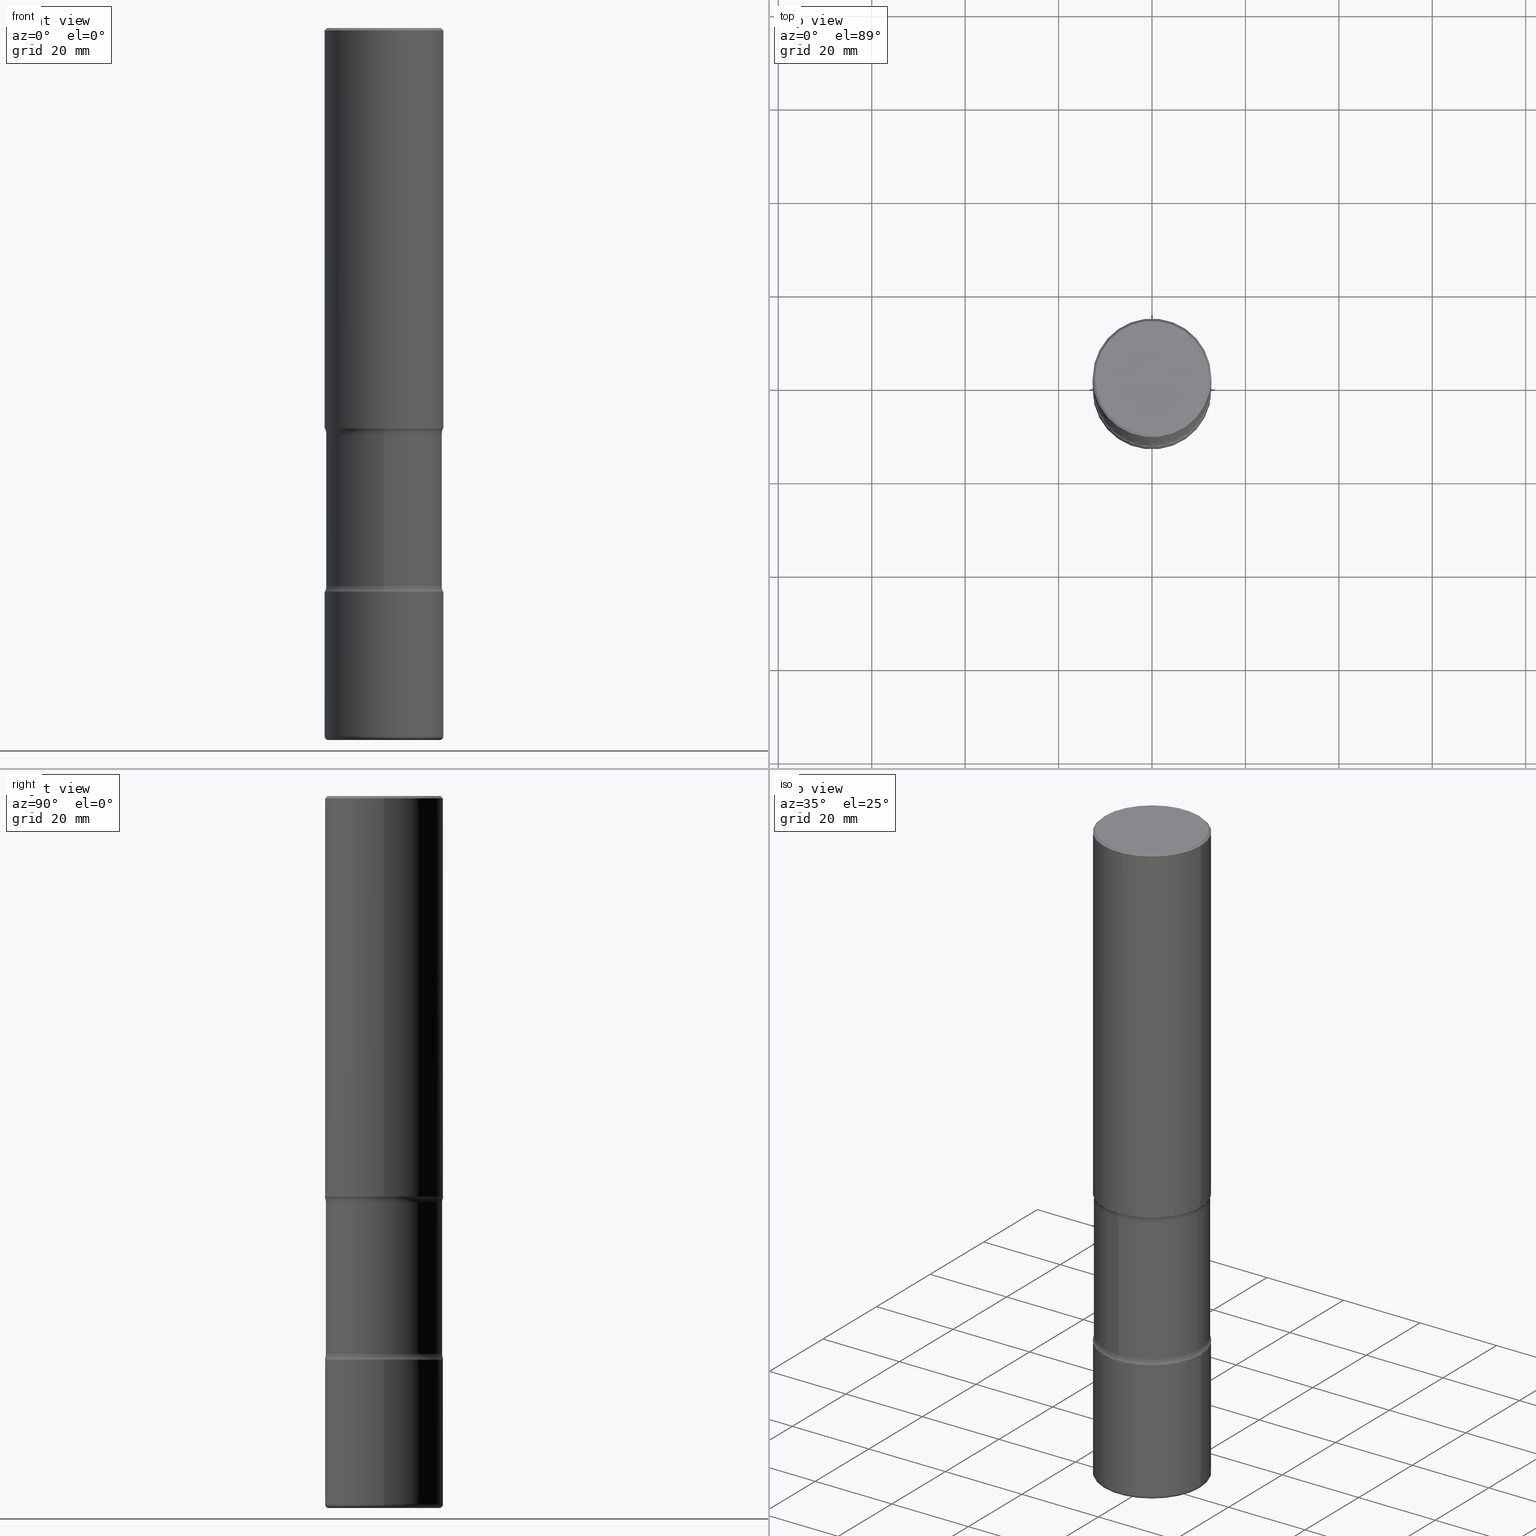
[diagram: canonical four-view strip — front | top / right | iso, engineering-drawing reading convention]
A machine part, canonical four-view strip (front | top / right | iso — engineering-drawing reading convention). The complete STEP part file that produces these views, byte-faithful:
ISO-10303-21;
HEADER;
FILE_DESCRIPTION (( 'STEP AP203' ),
    '1' );
FILE_NAME ('33523.STEP',
    '2024-03-01T22:44:56',
    ( '' ),
    ( '' ),
    'SwSTEP 2.0',
    'SolidWorks 2023',
    '' );
FILE_SCHEMA (( 'CONFIG_CONTROL_DESIGN' ));
ENDSEC;

DATA;
#1 = CARTESIAN_POINT ( 'NONE',  ( 1.467281283711081958E-28, -2.094888803305887271E-14, -6.000000000000000888 ) ) ;
#2 = VECTOR ( 'NONE', #434, 39.37007874015748143 ) ;
#3 = EDGE_LOOP ( 'NONE', ( #556, #431, #13, #83 ) ) ;
#4 = LINE ( 'NONE', #95, #504 ) ;
#5 = ORIENTED_EDGE ( 'NONE', *, *, #168, .T. ) ;
#6 = DIRECTION ( 'NONE',  ( 6.982962677686265922E-15, 1.000000000000000000, -3.278217592397109946E-15 ) ) ;
#7 = ORIENTED_EDGE ( 'NONE', *, *, #510, .T. ) ;
#8 = DIRECTION ( 'NONE',  ( 1.000000000000000000, -6.860497997771530774E-15, 4.843475318745101421E-29 ) ) ;
#9 = CARTESIAN_POINT ( 'NONE',  ( 4.890937612370273159E-31, -6.982962677686291609E-17, -0.02000000000000000042 ) ) ;
#10 = AXIS2_PLACEMENT_3D ( 'NONE', #40, #75, #217 ) ;
#11 = AXIS2_PLACEMENT_3D ( 'NONE', #1, #46, #432 ) ;
#12 = CARTESIAN_POINT ( 'NONE',  ( 0.5000000000000006661, -2.007601769834807990E-14, -4.750000000000000000 ) ) ;
#13 = ORIENTED_EDGE ( 'NONE', *, *, #500, .F. ) ;
#14 = PRODUCT ( '33523', '33523', '', ( #282 ) ) ;
#15 = APPLICATION_CONTEXT ( 'configuration controlled 3d designs of mechanical parts and assemblies' ) ;
#16 = DIRECTION ( 'NONE',  ( 2.598079946832093802E-29, -3.272933499350004525E-15, -1.000000000000000000 ) ) ;
#17 = DIRECTION ( 'NONE',  ( 6.860497997771532351E-15, 1.000000000000000000, 0.000000000000000000 ) ) ;
#18 = DIRECTION ( 'NONE',  ( 1.000000000000000000, 0.000000000000000000, 0.000000000000000000 ) ) ;
#19 = CARTESIAN_POINT ( 'NONE',  ( -0.5000000000000005551, 3.421651712066274396E-15, -0.02000000000000000042 ) ) ;
#20 = AXIS2_PLACEMENT_3D ( 'NONE', #22, #112, #243 ) ;
#21 = TOROIDAL_SURFACE ( 'NONE', #363, 0.4700000000000005840, 0.03000000000000029379 ) ;
#22 = CARTESIAN_POINT ( 'NONE',  ( -3.131554243005659264E-46, 4.471029511141341874E-32, 1.280553747030123384E-17 ) ) ;
#23 = CARTESIAN_POINT ( 'NONE',  ( -3.430248998885690051E-15, -0.5000000000000129896, -3.374999999999998668 ) ) ;
#24 = ADVANCED_FACE ( 'NONE', ( #90 ), #521, .F. ) ;
#25 = DIRECTION ( 'NONE',  ( 6.982962677686265922E-15, 1.000000000000000000, -3.272933499350004525E-15 ) ) ;
#26 = DIRECTION ( 'NONE',  ( 1.000000000000000000, -6.982962677686266711E-15, 4.876176775795935793E-29 ) ) ;
#27 = AXIS2_PLACEMENT_3D ( 'NONE', #77, #213, #169 ) ;
#28 = PERSON_AND_ORGANIZATION ( #349, #347 ) ;
#29 = DIRECTION ( 'NONE',  ( -1.000000000000000000, 6.982962677686266711E-15, 0.000000000000000000 ) ) ;
#30 = PRODUCT_RELATED_PRODUCT_CATEGORY ( 'detail', '', ( #14 ) ) ;
#31 = DATE_AND_TIME ( #204, #165 ) ;
#32 = DIRECTION ( 'NONE',  ( -6.982962677686265922E-15, -1.000000000000000000, 3.272933499350004525E-15 ) ) ;
#33 = ORIENTED_EDGE ( 'NONE', *, *, #302, .T. ) ;
#34 = EDGE_CURVE ( 'NONE', #141, #167, #98, .T. ) ;
#35 = DIRECTION ( 'NONE',  ( -2.445468806185136877E-29, 3.491481338843145188E-15, 1.000000000000000000 ) ) ;
#36 = ORIENTED_EDGE ( 'NONE', *, *, #500, .T. ) ;
#37 = VECTOR ( 'NONE', #58, 39.37007874015748143 ) ;
#38 = DIRECTION ( 'NONE',  ( -1.000000000000000000, 6.982962677686265922E-15, -4.876176775795935793E-29 ) ) ;
#39 = ORIENTED_EDGE ( 'NONE', *, *, #293, .T. ) ;
#40 = CARTESIAN_POINT ( 'NONE',  ( 8.182496310207079794E-29, -1.222798127249435385E-14, -3.423989794855665902 ) ) ;
#41 = ORIENTED_EDGE ( 'NONE', *, *, #150, .F. ) ;
#42 = CARTESIAN_POINT ( 'NONE',  ( 1.161597682937940108E-28, -1.658453635950494339E-14, -4.750000000000000000 ) ) ;
#43 = VERTEX_POINT ( 'NONE', #187 ) ;
#44 = EDGE_CURVE ( 'NONE', #134, #385, #126, .T. ) ;
#45 = CIRCLE ( 'NONE', #287, 0.5000000000000008882 ) ;
#46 = DIRECTION ( 'NONE',  ( -2.445468806185136597E-29, 3.491481338843145583E-15, 1.000000000000000000 ) ) ;
#47 = ORIENTED_EDGE ( 'NONE', *, *, #304, .T. ) ;
#48 = DIRECTION ( 'NONE',  ( -2.445468806185136877E-29, 3.491481338843145188E-15, 1.000000000000000000 ) ) ;
#49 = CARTESIAN_POINT ( 'NONE',  ( 1.467281283711081958E-28, -2.094888803305887271E-14, -6.000000000000000888 ) ) ;
#50 = APPROVAL ( #497, 'UNSPECIFIED' ) ;
#51 = DIRECTION ( 'NONE',  ( 6.982962677686265922E-15, 1.000000000000000000, -3.345119992241955130E-15 ) ) ;
#52 = VERTEX_POINT ( 'NONE', #442 ) ;
#53 = CARTESIAN_POINT ( 'NONE',  ( 3.421651712066419546E-15, 0.4899999999999793965, -6.000000000000001776 ) ) ;
#54 = AXIS2_PLACEMENT_3D ( 'NONE', #9, #305, #224 ) ;
#55 = ORIENTED_EDGE ( 'NONE', *, *, #67, .T. ) ;
#56 = AXIS2_PLACEMENT_3D ( 'NONE', #64, #405, #26 ) ;
#57 = CARTESIAN_POINT ( 'NONE',  ( 0.000000000000000000, 0.000000000000000000, 0.000000000000000000 ) ) ;
#58 = DIRECTION ( 'NONE',  ( 0.7071067811865459074, -7.319954787623249734E-15, -0.7071067811865491270 ) ) ;
#59 = DIRECTION ( 'NONE',  ( -2.445468806185136597E-29, 3.491481338843145583E-15, 1.000000000000000000 ) ) ;
#60 = EDGE_CURVE ( 'NONE', #252, #433, #70, .T. ) ;
#61 = ADVANCED_FACE ( 'NONE', ( #280 ), #238, .F. ) ;
#62 = DIRECTION ( 'NONE',  ( 6.982962677686265922E-15, 1.000000000000000000, -3.278217592397109946E-15 ) ) ;
#63 = DIRECTION ( 'NONE',  ( 1.000000000000000000, -6.982962677686266711E-15, 4.876176775795935793E-29 ) ) ;
#64 = CARTESIAN_POINT ( 'NONE',  ( 0.000000000000000000, 0.000000000000000000, 0.000000000000000000 ) ) ;
#65 = AXIS2_PLACEMENT_3D ( 'NONE', #499, #198, #114 ) ;
#66 = DIRECTION ( 'NONE',  ( 2.598079946832093802E-29, -3.272933499350004525E-15, -1.000000000000000000 ) ) ;
#67 = EDGE_CURVE ( 'NONE', #178, #509, #480, .T. ) ;
#68 = CARTESIAN_POINT ( 'NONE',  ( 0.4700000000000002509, -2.423088049157142248E-14, -6.000000000000000888 ) ) ;
#69 = DIRECTION ( 'NONE',  ( 1.000000000000000000, -6.982962677686266711E-15, 4.876176775795935793E-29 ) ) ;
#70 = CIRCLE ( 'NONE', #20, 0.4800000000000005929 ) ;
#71 = AXIS2_PLACEMENT_3D ( 'NONE', #290, #173, #116 ) ;
#72 = PERSON_AND_ORGANIZATION_ROLE ( 'creator' ) ;
#73 = FACE_OUTER_BOUND ( 'NONE', #76, .T. ) ;
#74 = VERTEX_POINT ( 'NONE', #153 ) ;
#75 = DIRECTION ( 'NONE',  ( 2.598079946832093802E-29, -3.272933499350004525E-15, -1.000000000000000000 ) ) ;
#76 = EDGE_LOOP ( 'NONE', ( #307, #343 ) ) ;
#77 = CARTESIAN_POINT ( 'NONE',  ( 1.467281283711081958E-28, -2.094888803305887271E-14, -6.000000000000000888 ) ) ;
#78 = VECTOR ( 'NONE', #35, 39.37007874015748143 ) ;
#79 = CIRCLE ( 'NONE', #120, 0.03000000000000029379 ) ;
#80 = DIRECTION ( 'NONE',  ( 1.000000000000000000, -6.982962677686269077E-15, 0.000000000000000000 ) ) ;
#81 = EDGE_LOOP ( 'NONE', ( #425, #130, #220, #380 ) ) ;
#82 = DIRECTION ( 'NONE',  ( 2.598079946832093802E-29, -3.272933499350004525E-15, -1.000000000000000000 ) ) ;
#83 = ORIENTED_EDGE ( 'NONE', *, *, #387, .F. ) ;
#84 = DESIGN_CONTEXT ( 'detailed design', #15, 'design' ) ;
#85 = FACE_OUTER_BOUND ( 'NONE', #351, .T. ) ;
#86 = ORIENTED_EDGE ( 'NONE', *, *, #422, .F. ) ;
#87 = CIRCLE ( 'NONE', #436, 0.5000000000000006661 ) ;
#88 = DIRECTION ( 'NONE',  ( -2.445468806185136597E-29, 3.491481338843145583E-15, 1.000000000000000000 ) ) ;
#89 = APPROVAL_PERSON_ORGANIZATION ( #451, #50, #192 ) ;
#90 = FACE_OUTER_BOUND ( 'NONE', #316, .T. ) ;
#91 = ADVANCED_FACE ( 'NONE', ( #452 ), #324, .T. ) ;
#92 = DIRECTION ( 'NONE',  ( 6.982962677686265922E-15, 1.000000000000000000, -3.345119992241955130E-15 ) ) ;
#93 = ORIENTED_EDGE ( 'NONE', *, *, #330, .T. ) ;
#94 = ADVANCED_BREP_SHAPE_REPRESENTATION ( '33523', ( #519, #512, #335, #535 ), #428 ) ;
#95 = CARTESIAN_POINT ( 'NONE',  ( 0.5000000000000006661, -3.491481338843138088E-15, 2.438088387897971260E-29 ) ) ;
#96 = ORIENTED_EDGE ( 'NONE', *, *, #329, .F. ) ;
#97 = CARTESIAN_POINT ( 'NONE',  ( -3.395946508896794322E-15, -0.4900000000000163669, -4.701010205144333653 ) ) ;
#98 = CIRCLE ( 'NONE', #54, 0.5000000000000005551 ) ;
#99 = ORIENTED_EDGE ( 'NONE', *, *, #119, .T. ) ;
#100 = AXIS2_PLACEMENT_3D ( 'NONE', #295, #472, #80 ) ;
#101 = ADVANCED_FACE ( 'NONE', ( #149 ), #542, .T. ) ;
#102 = DATE_TIME_ROLE ( 'creation_date' ) ;
#103 = DIRECTION ( 'NONE',  ( -6.982962677686265133E-15, -1.000000000000000000, 0.000000000000000000 ) ) ;
#104 = CARTESIAN_POINT ( 'NONE',  ( 1.459944877292526494E-28, -2.084414359289357934E-14, -5.969999999999999751 ) ) ;
#105 = CARTESIAN_POINT ( 'NONE',  ( 4.294522046777168570E-15, 0.6149999999999836708, -4.701010205144338094 ) ) ;
#106 =( NAMED_UNIT ( * ) SI_UNIT ( $, .STERADIAN. ) SOLID_ANGLE_UNIT ( ) );
#107 = CARTESIAN_POINT ( 'NONE',  ( 1.149617381423846373E-28, -1.641348940497263768E-14, -4.701010205144335430 ) ) ;
#108 = EDGE_CURVE ( 'NONE', #466, #524, #543, .T. ) ;
#109 = AXIS2_PLACEMENT_3D ( 'NONE', #201, #546, #241 ) ;
#110 = ADVANCED_FACE ( 'NONE', ( #498 ), #240, .F. ) ;
#111 = DIRECTION ( 'NONE',  ( 0.000000000000000000, 0.000000000000000000, 1.000000000000000000 ) ) ;
#112 = DIRECTION ( 'NONE',  ( -2.445468806185136597E-29, 3.491481338843145583E-15, 1.000000000000000000 ) ) ;
#113 = APPROVAL_DATE_TIME ( #321, #50 ) ;
#114 = DIRECTION ( 'NONE',  ( 1.000000000000000000, -6.982962677686267499E-15, 0.000000000000000000 ) ) ;
#115 = APPROVAL_ROLE ( '' ) ;
#116 = DIRECTION ( 'NONE',  ( -1.000000000000000000, 7.105427357600986081E-15, 0.000000000000000000 ) ) ;
#117 = EDGE_LOOP ( 'NONE', ( #490, #33, #355, #388 ) ) ;
#118 = VECTOR ( 'NONE', #443, 39.37007874015748143 ) ;
#119 = EDGE_CURVE ( 'NONE', #162, #74, #45, .T. ) ;
#120 = AXIS2_PLACEMENT_3D ( 'NONE', #137, #225, #392 ) ;
#121 = DIRECTION ( 'NONE',  ( -2.445468806185136597E-29, 3.491481338843145583E-15, 1.000000000000000000 ) ) ;
#122 = DIRECTION ( 'NONE',  ( 2.445468806185136597E-29, -3.491481338843145583E-15, -1.000000000000000000 ) ) ;
#123 = EDGE_LOOP ( 'NONE', ( #339, #532 ) ) ;
#124 = DIRECTION ( 'NONE',  ( 1.000000000000000000, -6.982962677686266711E-15, 4.876036955247123238E-29 ) ) ;
#125 = EDGE_LOOP ( 'NONE', ( #296, #301 ) ) ;
#126 = CIRCLE ( 'NONE', #445, 0.4700000000000002509 ) ;
#127 = CIRCLE ( 'NONE', #65, 0.5000000000000007772 ) ;
#128 = AXIS2_PLACEMENT_3D ( 'NONE', #525, #310, #270 ) ;
#129 = PLANE ( 'NONE',  #202 ) ;
#130 = ORIENTED_EDGE ( 'NONE', *, *, #255, .T. ) ;
#131 = CARTESIAN_POINT ( 'NONE',  ( 3.421651712066385231E-15, 0.4899999999999835598, -4.701010205144337206 ) ) ;
#132 = DIRECTION ( 'NONE',  ( 2.438088387897960049E-29, -3.491481338843145188E-15, -1.000000000000000000 ) ) ;
#133 = CARTESIAN_POINT ( 'NONE',  ( -0.4700000000000002509, -1.745038354453973469E-14, -6.000000000000000888 ) ) ;
#134 = VERTEX_POINT ( 'NONE', #68 ) ;
#135 = EDGE_CURVE ( 'NONE', #254, #481, #372, .T. ) ;
#136 = VECTOR ( 'NONE', #306, 39.37007874015748143 ) ;
#137 = CARTESIAN_POINT ( 'NONE',  ( 0.4700000000000005840, -2.412613605140612911E-14, -5.969999999999999751 ) ) ;
#138 = EDGE_LOOP ( 'NONE', ( #449, #400, #341, #478 ) ) ;
#139 = FACE_OUTER_BOUND ( 'NONE', #358, .T. ) ;
#140 = ORIENTED_EDGE ( 'NONE', *, *, #403, .T. ) ;
#141 = VERTEX_POINT ( 'NONE', #494 ) ;
#142 = EDGE_CURVE ( 'NONE', #254, #74, #229, .T. ) ;
#143 = APPLICATION_PROTOCOL_DEFINITION ( 'international standard', 'config_control_design', 1994, #171 ) ;
#144 = DIRECTION ( 'NONE',  ( 2.598079946832093802E-29, -3.272933499350004525E-15, -1.000000000000000000 ) ) ;
#145 = VECTOR ( 'NONE', #144, 39.37007874015748143 ) ;
#146 = CC_DESIGN_APPROVAL ( #151, ( #256 ) ) ;
#147 = APPROVAL_STATUS ( 'not_yet_approved' ) ;
#148 = FACE_OUTER_BOUND ( 'NONE', #208, .T. ) ;
#149 = FACE_OUTER_BOUND ( 'NONE', #117, .T. ) ;
#150 = EDGE_CURVE ( 'NONE', #481, #524, #414, .T. ) ;
#151 = APPROVAL ( #147, 'UNSPECIFIED' ) ;
#152 = PERSON_AND_ORGANIZATION_ROLE ( 'creator' ) ;
#153 = CARTESIAN_POINT ( 'NONE',  ( 3.491481338843219736E-15, 0.4999999999999887867, -3.375000000000002220 ) ) ;
#154 = AXIS2_PLACEMENT_3D ( 'NONE', #342, #513, #124 ) ;
#155 = CC_DESIGN_APPROVAL ( #50, ( #203 ) ) ;
#156 = CARTESIAN_POINT ( 'NONE',  ( 8.182496310207079794E-29, -1.222798127249435385E-14, -3.423989794855665902 ) ) ;
#157 = APPROVAL_DATE_TIME ( #31, #308 ) ;
#158 = PLANE ( 'NONE',  #211 ) ;
#159 = EDGE_LOOP ( 'NONE', ( #93, #551, #218, #507 ) ) ;
#160 = EDGE_CURVE ( 'NONE', #444, #382, #127, .T. ) ;
#161 = DIRECTION ( 'NONE',  ( -2.445468806185136597E-29, 3.491481338843145583E-15, 1.000000000000000000 ) ) ;
#162 = VERTEX_POINT ( 'NONE', #23 ) ;
#163 = AXIS2_PLACEMENT_3D ( 'NONE', #156, #237, #281 ) ;
#164 = CIRCLE ( 'NONE', #534, 0.5000000000000008882 ) ;
#165 = LOCAL_TIME ( 17, 44, 56.00000000000000000, #459 ) ;
#166 = CARTESIAN_POINT ( 'NONE',  ( 0.5000000000000006661, -3.491481338843138088E-15, 2.438088387897971260E-29 ) ) ;
#167 = VERTEX_POINT ( 'NONE', #19 ) ;
#168 = EDGE_CURVE ( 'NONE', #466, #178, #446, .T. ) ;
#169 = DIRECTION ( 'NONE',  ( -1.000000000000000000, 6.982962677686265922E-15, -4.876176775795935793E-29 ) ) ;
#170 = ORIENTED_EDGE ( 'NONE', *, *, #491, .F. ) ;
#171 = APPLICATION_CONTEXT ( 'configuration controlled 3d designs of mechanical parts and assemblies' ) ;
#172 = EDGE_CURVE ( 'NONE', #252, #141, #191, .T. ) ;
#173 = DIRECTION ( 'NONE',  ( 7.105427357601001859E-15, 1.000000000000000000, -3.491481338843145583E-15 ) ) ;
#174 = DIMENSIONAL_EXPONENTS ( 1.000000000000000000, 0.000000000000000000, 0.000000000000000000, 0.000000000000000000, 0.000000000000000000, 0.000000000000000000, 0.000000000000000000 ) ;
#175 = ORIENTED_EDGE ( 'NONE', *, *, #108, .F. ) ;
#176 = AXIS2_PLACEMENT_3D ( 'NONE', #361, #327, #17 ) ;
#177 = DIRECTION ( 'NONE',  ( 2.598079946832093802E-29, -3.272933499350004525E-15, -1.000000000000000000 ) ) ;
#178 = VERTEX_POINT ( 'NONE', #492 ) ;
#179 = CARTESIAN_POINT ( 'NONE',  ( 1.459944877292526494E-28, -2.084414359289357934E-14, -5.969999999999999751 ) ) ;
#180 = ORIENTED_EDGE ( 'NONE', *, *, #413, .F. ) ;
#181 = UNCERTAINTY_MEASURE_WITH_UNIT (LENGTH_MEASURE( 1.000000000000000082E-05 ), #323, 'distance_accuracy_value', 'NONE');
#182 = FACE_OUTER_BOUND ( 'NONE', #360, .T. ) ;
#183 = CARTESIAN_POINT ( 'NONE',  ( 3.351822085289412281E-15, 0.4800000000000005929, -1.669508273909561417E-15 ) ) ;
#184 = CONICAL_SURFACE ( 'NONE', #309, 0.5000000000000005551, 0.7853981633974460586 ) ;
#185 = DIRECTION ( 'NONE',  ( 2.598079946832093802E-29, -3.272933499350004525E-15, -1.000000000000000000 ) ) ;
#186 = APPROVAL_PERSON_ORGANIZATION ( #28, #308, #115 ) ;
#187 = CARTESIAN_POINT ( 'NONE',  ( -0.5000000000000007772, -1.729142991409307210E-14, -5.969999999999999751 ) ) ;
#188 = DIRECTION ( 'NONE',  ( 2.598079946832093802E-29, -3.272933499350004525E-15, -1.000000000000000000 ) ) ;
#189 = ORIENTED_EDGE ( 'NONE', *, *, #234, .T. ) ;
#190 = DIRECTION ( 'NONE',  ( 1.000000000000000000, -6.982962677686265922E-15, 4.883557194083112901E-29 ) ) ;
#191 = LINE ( 'NONE', #533, #37 ) ;
#192 = APPROVAL_ROLE ( '' ) ;
#193 = CC_DESIGN_DATE_AND_TIME_ASSIGNMENT ( #548, #545, ( #409 ) ) ;
#194 = AXIS2_PLACEMENT_3D ( 'NONE', #378, #376, #251 ) ;
#195 = DIRECTION ( 'NONE',  ( 2.598079946832093802E-29, -3.272933499350004525E-15, -1.000000000000000000 ) ) ;
#196 = AXIS2_PLACEMENT_3D ( 'NONE', #104, #59, #278 ) ;
#197 =( LENGTH_UNIT ( ) NAMED_UNIT ( * ) SI_UNIT ( $, .METRE. ) );
#198 = DIRECTION ( 'NONE',  ( -2.445468806185136597E-29, 3.491481338843145583E-15, 1.000000000000000000 ) ) ;
#199 = COORDINATED_UNIVERSAL_TIME_OFFSET ( 5, 0, .BEHIND. ) ;
#200 = CARTESIAN_POINT ( 'NONE',  ( 1.486357676291951651E-28, -2.067570323369244855E-14, -6.000000000000000888 ) ) ;
#201 = CARTESIAN_POINT ( 'NONE',  ( 4.294522046777136226E-15, 0.6149999999999878897, -3.423989794855668123 ) ) ;
#202 = AXIS2_PLACEMENT_3D ( 'NONE', #292, #467, #32 ) ;
#203 = PRODUCT_DEFINITION_FORMATION_WITH_SPECIFIED_SOURCE ( 'ANY', '', #14, .NOT_KNOWN. ) ;
#204 = CALENDAR_DATE ( 2024, 1, 3 ) ;
#205 = PLANE ( 'NONE',  #527 ) ;
#206 = PERSON_AND_ORGANIZATION ( #349, #347 ) ;
#207 = CARTESIAN_POINT ( 'NONE',  ( 0.000000000000000000, 0.000000000000000000, 0.000000000000000000 ) ) ;
#208 = EDGE_LOOP ( 'NONE', ( #291, #96, #262, #39 ) ) ;
#209 = DIRECTION ( 'NONE',  ( 6.982962677686266711E-15, 1.000000000000000000, -3.345119992241953553E-15 ) ) ;
#210 = ORIENTED_EDGE ( 'NONE', *, *, #60, .T. ) ;
#211 = AXIS2_PLACEMENT_3D ( 'NONE', #344, #337, #38 ) ;
#212 = AXIS2_PLACEMENT_3D ( 'NONE', #183, #132, #395 ) ;
#213 = DIRECTION ( 'NONE',  ( 2.438088387897960049E-29, -3.491481338843145188E-15, -1.000000000000000000 ) ) ;
#214 = ADVANCED_FACE ( 'NONE', ( #235 ), #366, .T. ) ;
#215 = ADVANCED_FACE ( 'NONE', ( #148 ), #184, .T. ) ;
#216 = ORIENTED_EDGE ( 'NONE', *, *, #332, .T. ) ;
#217 = DIRECTION ( 'NONE',  ( 6.982962677686265922E-15, 1.000000000000000000, -3.272933499350004525E-15 ) ) ;
#218 = ORIENTED_EDGE ( 'NONE', *, *, #440, .F. ) ;
#219 = CARTESIAN_POINT ( 'NONE',  ( 1.161597682937940108E-28, -1.658453635950494339E-14, -4.750000000000000000 ) ) ;
#220 = ORIENTED_EDGE ( 'NONE', *, *, #330, .F. ) ;
#221 = CIRCLE ( 'NONE', #417, 0.4899999999999999911 ) ;
#222 = AXIS2_PLACEMENT_3D ( 'NONE', #207, #161, #69 ) ;
#223 = CARTESIAN_POINT ( 'NONE',  ( 1.486357676291951651E-28, -2.067570323369244855E-14, -6.000000000000000888 ) ) ;
#224 = DIRECTION ( 'NONE',  ( 1.000000000000000000, -6.982962677686266711E-15, 0.000000000000000000 ) ) ;
#225 = DIRECTION ( 'NONE',  ( -6.982962677686266711E-15, -1.000000000000000000, 3.491481338843145583E-15 ) ) ;
#226 = ORIENTED_EDGE ( 'NONE', *, *, #491, .T. ) ;
#227 = CARTESIAN_POINT ( 'NONE',  ( -3.430248998885653369E-15, -0.5000000000000172085, -4.749999999999999112 ) ) ;
#228 = VERTEX_POINT ( 'NONE', #460 ) ;
#229 = CIRCLE ( 'NONE', #109, 0.1249999999999999584 ) ;
#230 = DIRECTION ( 'NONE',  ( 1.000000000000000000, -6.982962677686265133E-15, 0.000000000000000000 ) ) ;
#231 = CIRCLE ( 'NONE', #128, 0.5000000000000007772 ) ;
#232 = EDGE_LOOP ( 'NONE', ( #86, #429, #47, #258 ) ) ;
#233 = ADVANCED_FACE ( 'NONE', ( #550 ), #205, .F. ) ;
#234 = EDGE_CURVE ( 'NONE', #481, #254, #356, .T. ) ;
#235 = FACE_OUTER_BOUND ( 'NONE', #3, .T. ) ;
#236 = DIRECTION ( 'NONE',  ( -2.445468806185136597E-29, 3.491481338843145583E-15, 1.000000000000000000 ) ) ;
#237 = DIRECTION ( 'NONE',  ( 2.598079946832093802E-29, -3.272933499350004525E-15, -1.000000000000000000 ) ) ;
#238 = TOROIDAL_SURFACE ( 'NONE', #163, 0.6150000000000001021, 0.1249999999999999584 ) ;
#239 =( NAMED_UNIT ( * ) PLANE_ANGLE_UNIT ( ) SI_UNIT ( $, .RADIAN. ) );
#240 = TOROIDAL_SURFACE ( 'NONE', #389, 0.6150000000000001021, 0.1250000000000000278 ) ;
#241 = DIRECTION ( 'NONE',  ( -6.982962677686265133E-15, -1.000000000000000000, 0.000000000000000000 ) ) ;
#242 = ADVANCED_FACE ( 'NONE', ( #430 ), #158, .F. ) ;
#243 = DIRECTION ( 'NONE',  ( 1.000000000000000000, -6.982962677686266711E-15, 4.876036955247123238E-29 ) ) ;
#244 = DATE_AND_TIME ( #315, #379 ) ;
#245 = DIRECTION ( 'NONE',  ( 6.982962677686266711E-15, 1.000000000000000000, -3.345119992241953553E-15 ) ) ;
#246 = SECURITY_CLASSIFICATION_LEVEL ( 'unclassified' ) ;
#247 = ADVANCED_FACE ( 'NONE', ( #426 ), #461, .T. ) ;
#248 = DIRECTION ( 'NONE',  ( 1.000000000000000000, -6.982962677686266711E-15, 0.000000000000000000 ) ) ;
#249 = AXIS2_PLACEMENT_3D ( 'NONE', #559, #549, #209 ) ;
#250 = CALENDAR_DATE ( 2024, 1, 3 ) ;
#251 = DIRECTION ( 'NONE',  ( 6.982962677686265922E-15, 1.000000000000000000, -3.272933499350004525E-15 ) ) ;
#252 = VERTEX_POINT ( 'NONE', #334 ) ;
#253 = LINE ( 'NONE', #424, #78 ) ;
#254 = VERTEX_POINT ( 'NONE', #502 ) ;
#255 = EDGE_CURVE ( 'NONE', #385, #43, #267, .T. ) ;
#256 = PRODUCT_DEFINITION ( 'UNKNOWN', '', #203, #84 ) ;
#257 = CARTESIAN_POINT ( 'NONE',  ( 8.253457220874837135E-29, -1.178374951859561767E-14, -3.375000000000000444 ) ) ;
#258 = ORIENTED_EDGE ( 'NONE', *, *, #448, .F. ) ;
#259 = ADVANCED_FACE ( 'NONE', ( #515 ), #463, .F. ) ;
#260 = AXIS2_PLACEMENT_3D ( 'NONE', #223, #185, #394 ) ;
#261 = DIRECTION ( 'NONE',  ( -2.445468806185136877E-29, 3.491481338843145188E-15, 1.000000000000000000 ) ) ;
#262 = ORIENTED_EDGE ( 'NONE', *, *, #404, .T. ) ;
#263 = DIRECTION ( 'NONE',  ( 1.000000000000000000, -6.982962677686265133E-15, 0.000000000000000000 ) ) ;
#264 = ADVANCED_FACE ( 'NONE', ( #464 ), #129, .F. ) ;
#265 = CARTESIAN_POINT ( 'NONE',  ( -0.4800000000000005929, 3.386736898677843141E-15, 1.280553747027767124E-17 ) ) ;
#266 = EDGE_LOOP ( 'NONE', ( #518, #7, #99, #288 ) ) ;
#267 = CIRCLE ( 'NONE', #71, 0.03000000000000029379 ) ;
#268 = CARTESIAN_POINT ( 'NONE',  ( -0.5000000000000007772, -2.374075893885732456E-15, -3.375000000000000444 ) ) ;
#269 = ORIENTED_EDGE ( 'NONE', *, *, #538, .F. ) ;
#270 = DIRECTION ( 'NONE',  ( 1.000000000000000000, -6.982962677686267499E-15, 0.000000000000000000 ) ) ;
#271 = DIRECTION ( 'NONE',  ( 1.000000000000000000, -6.982962677686267499E-15, 0.000000000000000000 ) ) ;
#272 = ADVANCED_FACE ( 'NONE', ( #73 ), #418, .F. ) ;
#273 = CC_DESIGN_PERSON_AND_ORGANIZATION_ASSIGNMENT ( #462, #72, ( #203 ) ) ;
#274 = LINE ( 'NONE', #53, #2 ) ;
#275 = EDGE_LOOP ( 'NONE', ( #514, #279, #503, #140 ) ) ;
#276 = CLOSED_SHELL ( 'NONE', ( #286, #348, #320, #511, #91, #242 ) ) ;
#277 = VECTOR ( 'NONE', #261, 39.37007874015748143 ) ;
#278 = DIRECTION ( 'NONE',  ( 1.000000000000000000, -6.982962677686269077E-15, 0.000000000000000000 ) ) ;
#279 = ORIENTED_EDGE ( 'NONE', *, *, #135, .F. ) ;
#280 = FACE_OUTER_BOUND ( 'NONE', #275, .T. ) ;
#281 = DIRECTION ( 'NONE',  ( 6.982962677686265922E-15, 1.000000000000000000, -3.272933499350004525E-15 ) ) ;
#282 = MECHANICAL_CONTEXT ( 'NONE', #171, 'mechanical' ) ;
#283 = DIRECTION ( 'NONE',  ( 2.598079946832093802E-29, -3.272933499350004525E-15, -1.000000000000000000 ) ) ;
#284 = APPROVAL_DATE_TIME ( #368, #151 ) ;
#285 = DIRECTION ( 'NONE',  ( 6.982962677686265922E-15, 1.000000000000000000, -3.278217592397111523E-15 ) ) ;
#286 = ADVANCED_FACE ( 'NONE', ( #421 ), #384, .T. ) ;
#287 = AXIS2_PLACEMENT_3D ( 'NONE', #407, #331, #62 ) ;
#288 = ORIENTED_EDGE ( 'NONE', *, *, #142, .F. ) ;
#289 = PERSON_AND_ORGANIZATION ( #349, #347 ) ;
#290 = CARTESIAN_POINT ( 'NONE',  ( -0.4700000000000005840, -1.750459273482110076E-14, -5.969999999999999751 ) ) ;
#291 = ORIENTED_EDGE ( 'NONE', *, *, #172, .F. ) ;
#292 = CARTESIAN_POINT ( 'NONE',  ( 1.161597682937940108E-28, -1.658453635950494339E-14, -4.750000000000000000 ) ) ;
#293 = EDGE_CURVE ( 'NONE', #167, #141, #346, .T. ) ;
#294 = ORIENTED_EDGE ( 'NONE', *, *, #329, .T. ) ;
#295 = CARTESIAN_POINT ( 'NONE',  ( 1.459944877292526494E-28, -2.084414359289357934E-14, -5.969999999999999751 ) ) ;
#296 = ORIENTED_EDGE ( 'NONE', *, *, #440, .T. ) ;
#297 = CLOSED_SHELL ( 'NONE', ( #214, #522, #259, #61, #272, #264, #110, #488 ) ) ;
#298 = AXIS2_PLACEMENT_3D ( 'NONE', #458, #495, #416 ) ;
#299 = CIRCLE ( 'NONE', #11, 0.4700000000000002509 ) ;
#300 = CARTESIAN_POINT ( 'NONE',  ( 1.161597682937940108E-28, -1.658453635950494339E-14, -4.750000000000000000 ) ) ;
#301 = ORIENTED_EDGE ( 'NONE', *, *, #448, .T. ) ;
#302 = EDGE_CURVE ( 'NONE', #382, #167, #253, .T. ) ;
#303 = DIRECTION ( 'NONE',  ( 6.860497997771532351E-15, 1.000000000000000000, 0.000000000000000000 ) ) ;
#304 = EDGE_CURVE ( 'NONE', #228, #345, #554, .T. ) ;
#305 = DIRECTION ( 'NONE',  ( -2.445468806185136597E-29, 3.491481338843145583E-15, 1.000000000000000000 ) ) ;
#306 = DIRECTION ( 'NONE',  ( -2.445468806185136877E-29, 3.491481338843145188E-15, 1.000000000000000000 ) ) ;
#307 = ORIENTED_EDGE ( 'NONE', *, *, #403, .F. ) ;
#308 = APPROVAL ( #373, 'UNSPECIFIED' ) ;
#309 = AXIS2_PLACEMENT_3D ( 'NONE', #454, #411, #29 ) ;
#310 = DIRECTION ( 'NONE',  ( -2.445468806185136597E-29, 3.491481338843145583E-15, 1.000000000000000000 ) ) ;
#311 = ORIENTED_EDGE ( 'NONE', *, *, #470, .T. ) ;
#312 = CC_DESIGN_PERSON_AND_ORGANIZATION_ASSIGNMENT ( #456, #412, ( #14 ) ) ;
#313 = CARTESIAN_POINT ( 'NONE',  ( -3.395946508896831399E-15, -0.4900000000000125366, -3.423989794855664126 ) ) ;
#314 = EDGE_LOOP ( 'NONE', ( #375, #226, #216, #530 ) ) ;
#315 = CALENDAR_DATE ( 2024, 1, 3 ) ;
#316 = EDGE_LOOP ( 'NONE', ( #294, #210 ) ) ;
#317 = AXIS2_PLACEMENT_3D ( 'NONE', #367, #195, #285 ) ;
#318 = APPLICATION_PROTOCOL_DEFINITION ( 'international standard', 'config_control_design', 1994, #15 ) ;
#319 = CARTESIAN_POINT ( 'NONE',  ( -3.361644018907902538E-15, -0.4900000000000208078, -5.999999999999999112 ) ) ;
#320 = ADVANCED_FACE ( 'NONE', ( #508 ), #468, .T. ) ;
#321 = DATE_AND_TIME ( #536, #398 ) ;
#322 = CARTESIAN_POINT ( 'NONE',  ( 8.170896306099193759E-29, -1.224459313860807689E-14, -3.423989794855665902 ) ) ;
#323 =( CONVERSION_BASED_UNIT ( 'INCH', #406 ) LENGTH_UNIT ( ) NAMED_UNIT ( #174 ) );
#324 = CYLINDRICAL_SURFACE ( 'NONE', #298, 0.5000000000000006661 ) ;
#325 = COORDINATED_UNIVERSAL_TIME_OFFSET ( 5, 0, .BEHIND. ) ;
#326 = AXIS2_PLACEMENT_3D ( 'NONE', #506, #121, #248 ) ;
#327 = DIRECTION ( 'NONE',  ( 1.000000000000000000, -6.860497997771530774E-15, 4.843475318745101421E-29 ) ) ;
#328 = AXIS2_PLACEMENT_3D ( 'NONE', #486, #489, #190 ) ;
#329 = EDGE_CURVE ( 'NONE', #433, #252, #397, .T. ) ;
#330 = EDGE_CURVE ( 'NONE', #228, #43, #473, .T. ) ;
#331 = DIRECTION ( 'NONE',  ( 2.598079946832093802E-29, -3.272933499350004525E-15, -1.000000000000000000 ) ) ;
#332 = EDGE_CURVE ( 'NONE', #444, #141, #4, .T. ) ;
#333 = SHAPE_DEFINITION_REPRESENTATION ( #450, #94 ) ;
#334 = CARTESIAN_POINT ( 'NONE',  ( 0.4800000000000005929, -3.396558832296486043E-15, 1.280553747032483033E-17 ) ) ;
#335 = MANIFOLD_SOLID_BREP ( 'Body-Move/Copy2[4]', #297 ) ;
#336 = COORDINATED_UNIVERSAL_TIME_OFFSET ( 5, 0, .BEHIND. ) ;
#337 = DIRECTION ( 'NONE',  ( 2.438088387897960049E-29, -3.491481338843145188E-15, -1.000000000000000000 ) ) ;
#338 = LOCAL_TIME ( 17, 44, 56.00000000000000000, #199 ) ;
#339 = ORIENTED_EDGE ( 'NONE', *, *, #44, .F. ) ;
#340 = CARTESIAN_POINT ( 'NONE',  ( 4.890937612370273159E-31, -6.982962677686291609E-17, -0.02000000000000000042 ) ) ;
#341 = ORIENTED_EDGE ( 'NONE', *, *, #34, .T. ) ;
#342 = CARTESIAN_POINT ( 'NONE',  ( -3.131554243005659264E-46, 4.471029511141341874E-32, 1.280553747030123384E-17 ) ) ;
#343 = ORIENTED_EDGE ( 'NONE', *, *, #119, .F. ) ;
#344 = CARTESIAN_POINT ( 'NONE',  ( 1.161597682937940108E-28, -1.658453635950494339E-14, -4.750000000000000000 ) ) ;
#345 = VERTEX_POINT ( 'NONE', #12 ) ;
#346 = CIRCLE ( 'NONE', #326, 0.5000000000000005551 ) ;
#347 = ORGANIZATION ( 'UNSPECIFIED', 'UNSPECIFIED', '' ) ;
#348 = ADVANCED_FACE ( 'NONE', ( #484 ), #21, .T. ) ;
#349 = PERSON ( 'UNSPECIFIED', 'UNSPECIFIED', 'UNSPECIFIED', ('UNSPECIFIED'), ('UNSPECIFIED'), ('UNSPECIFIED') ) ;
#350 = DIRECTION ( 'NONE',  ( 1.000000000000000000, -6.982962677686265922E-15, 4.883557194083112901E-29 ) ) ;
#351 = EDGE_LOOP ( 'NONE', ( #560, #311, #487, #269 ) ) ;
#352 = DIRECTION ( 'NONE',  ( -2.445468806185136597E-29, 3.491481338843145583E-15, 1.000000000000000000 ) ) ;
#353 = EDGE_LOOP ( 'NONE', ( #175, #180, #55, #36 ) ) ;
#354 = CYLINDRICAL_SURFACE ( 'NONE', #260, 0.4900000000000001021 ) ;
#355 = ORIENTED_EDGE ( 'NONE', *, *, #34, .F. ) ;
#356 = CIRCLE ( 'NONE', #249, 0.4900000000000002132 ) ;
#357 = TOROIDAL_SURFACE ( 'NONE', #328, 0.4700000000000005840, 0.03000000000000029379 ) ;
#358 = EDGE_LOOP ( 'NONE', ( #393, #485, #558, #475 ) ) ;
#359 = DIRECTION ( 'NONE',  ( 6.982962677686265922E-15, 1.000000000000000000, -3.278217592397111523E-15 ) ) ;
#360 = EDGE_LOOP ( 'NONE', ( #41, #189, #423, #391 ) ) ;
#361 = CARTESIAN_POINT ( 'NONE',  ( -4.219206268629376327E-15, -0.6150000000000164224, -4.701010205144333653 ) ) ;
#362 = EDGE_CURVE ( 'NONE', #524, #509, #221, .T. ) ;
#363 = AXIS2_PLACEMENT_3D ( 'NONE', #179, #352, #350 ) ;
#364 = AXIS2_PLACEMENT_3D ( 'NONE', #402, #16, #25 ) ;
#365 = COORDINATED_UNIVERSAL_TIME_OFFSET ( 5, 0, .BEHIND. ) ;
#366 = CYLINDRICAL_SURFACE ( 'NONE', #496, 0.4900000000000001021 ) ;
#367 = CARTESIAN_POINT ( 'NONE',  ( 1.161597682937940108E-28, -1.658453635950494339E-14, -4.750000000000000000 ) ) ;
#368 = DATE_AND_TIME ( #415, #338 ) ;
#369 = DIRECTION ( 'NONE',  ( 6.982962677686266711E-15, 1.000000000000000000, -2.230079994827969693E-15 ) ) ;
#370 = CC_DESIGN_DATE_AND_TIME_ASSIGNMENT ( #244, #102, ( #256 ) ) ;
#371 = APPROVAL_ROLE ( '' ) ;
#372 = CIRCLE ( 'NONE', #427, 0.4900000000000002132 ) ;
#373 = APPROVAL_STATUS ( 'not_yet_approved' ) ;
#374 = DIRECTION ( 'NONE',  ( -2.438088387897960049E-29, 3.491481338843145188E-15, 1.000000000000000000 ) ) ;
#375 = ORIENTED_EDGE ( 'NONE', *, *, #302, .F. ) ;
#376 = DIRECTION ( 'NONE',  ( 2.598079946832093241E-29, -3.272933499350004525E-15, -1.000000000000000000 ) ) ;
#377 = ORIENTED_EDGE ( 'NONE', *, *, #413, .T. ) ;
#378 = CARTESIAN_POINT ( 'NONE',  ( 8.253457220874837135E-29, -1.178374951859561767E-14, -3.375000000000000444 ) ) ;
#379 = LOCAL_TIME ( 17, 44, 56.00000000000000000, #325 ) ;
#380 = ORIENTED_EDGE ( 'NONE', *, *, #471, .F. ) ;
#381 = DIRECTION ( 'NONE',  ( -1.000000000000000000, 6.982962677686266711E-15, 0.000000000000000000 ) ) ;
#382 = VERTEX_POINT ( 'NONE', #268 ) ;
#383 = CC_DESIGN_PERSON_AND_ORGANIZATION_ASSIGNMENT ( #289, #420, ( #203 ) ) ;
#384 = CYLINDRICAL_SURFACE ( 'NONE', #222, 0.5000000000000006661 ) ;
#385 = VERTEX_POINT ( 'NONE', #133 ) ;
#386 = CARTESIAN_POINT ( 'NONE',  ( 1.148869742576547963E-28, -1.642419601879555421E-14, -4.701010205144335430 ) ) ;
#387 = EDGE_CURVE ( 'NONE', #254, #509, #274, .T. ) ;
#388 = ORIENTED_EDGE ( 'NONE', *, *, #332, .F. ) ;
#389 = AXIS2_PLACEMENT_3D ( 'NONE', #107, #283, #457 ) ;
#390 = TOROIDAL_SURFACE ( 'NONE', #364, 0.6150000000000001021, 0.1250000000000000278 ) ;
#391 = ORIENTED_EDGE ( 'NONE', *, *, #362, .F. ) ;
#392 = DIRECTION ( 'NONE',  ( 1.000000000000000000, -6.982962677686329031E-15, 0.000000000000000000 ) ) ;
#393 = ORIENTED_EDGE ( 'NONE', *, *, #168, .F. ) ;
#394 = DIRECTION ( 'NONE',  ( 6.982962677686266711E-15, 1.000000000000000000, -2.230079994827969693E-15 ) ) ;
#395 = DIRECTION ( 'NONE',  ( -1.000000000000000000, 6.982962677686265922E-15, -4.876176775795935793E-29 ) ) ;
#396 = CLOSED_SHELL ( 'NONE', ( #101, #247, #215, #24, #233, #547 ) ) ;
#397 = CIRCLE ( 'NONE', #154, 0.4800000000000005929 ) ;
#398 = LOCAL_TIME ( 17, 44, 56.00000000000000000, #365 ) ;
#399 = CARTESIAN_POINT ( 'NONE',  ( -0.5000000000000006661, 3.552713678800505663E-15, -2.459467545127455974E-29 ) ) ;
#400 = ORIENTED_EDGE ( 'NONE', *, *, #172, .T. ) ;
#401 = CC_DESIGN_PERSON_AND_ORGANIZATION_ASSIGNMENT ( #206, #501, ( #409 ) ) ;
#402 = CARTESIAN_POINT ( 'NONE',  ( 1.149617381423846373E-28, -1.641348940497263768E-14, -4.701010205144335430 ) ) ;
#403 = EDGE_CURVE ( 'NONE', #74, #162, #164, .T. ) ;
#404 = EDGE_CURVE ( 'NONE', #433, #167, #438, .T. ) ;
#405 = DIRECTION ( 'NONE',  ( -2.445468806185136597E-29, 3.491481338843145583E-15, 1.000000000000000000 ) ) ;
#406 = LENGTH_MEASURE_WITH_UNIT ( LENGTH_MEASURE( 0.02539999999999999897 ), #197 );
#407 = CARTESIAN_POINT ( 'NONE',  ( 8.043616902485270068E-29, -1.208425279789868613E-14, -3.375000000000000444 ) ) ;
#408 = CIRCLE ( 'NONE', #482, 0.5000000000000006661 ) ;
#409 = SECURITY_CLASSIFICATION ( '', '', #246 ) ;
#410 = CYLINDRICAL_SURFACE ( 'NONE', #505, 0.5000000000000006661 ) ;
#411 = DIRECTION ( 'NONE',  ( 2.445468806185136597E-29, -3.491481338843145583E-15, -1.000000000000000000 ) ) ;
#412 = PERSON_AND_ORGANIZATION_ROLE ( 'design_owner' ) ;
#413 = EDGE_CURVE ( 'NONE', #178, #466, #87, .T. ) ;
#414 = LINE ( 'NONE', #319, #145 ) ;
#415 = CALENDAR_DATE ( 2024, 1, 3 ) ;
#416 = DIRECTION ( 'NONE',  ( 1.000000000000000000, -6.982962677686266711E-15, 4.876176775795935793E-29 ) ) ;
#417 = AXIS2_PLACEMENT_3D ( 'NONE', #386, #523, #92 ) ;
#418 = PLANE ( 'NONE',  #194 ) ;
#419 = CIRCLE ( 'NONE', #196, 0.5000000000000006661 ) ;
#420 = PERSON_AND_ORGANIZATION_ROLE ( 'design_supplier' ) ;
#421 = FACE_OUTER_BOUND ( 'NONE', #159, .T. ) ;
#422 = EDGE_CURVE ( 'NONE', #43, #52, #479, .T. ) ;
#423 = ORIENTED_EDGE ( 'NONE', *, *, #387, .T. ) ;
#424 = CARTESIAN_POINT ( 'NONE',  ( -0.5000000000000006661, 3.552713678800505663E-15, -2.459467545127455974E-29 ) ) ;
#425 = ORIENTED_EDGE ( 'NONE', *, *, #44, .T. ) ;
#426 = FACE_OUTER_BOUND ( 'NONE', #138, .T. ) ;
#427 = AXIS2_PLACEMENT_3D ( 'NONE', #322, #66, #245 ) ;
#428 =( GEOMETRIC_REPRESENTATION_CONTEXT ( 3 ) GLOBAL_UNCERTAINTY_ASSIGNED_CONTEXT ( ( #181 ) ) GLOBAL_UNIT_ASSIGNED_CONTEXT ( ( #323, #239, #106 ) ) REPRESENTATION_CONTEXT ( 'NONE', 'WORKASPACE' ) );
#429 = ORIENTED_EDGE ( 'NONE', *, *, #538, .T. ) ;
#430 = FACE_OUTER_BOUND ( 'NONE', #125, .T. ) ;
#431 = ORIENTED_EDGE ( 'NONE', *, *, #150, .T. ) ;
#432 = DIRECTION ( 'NONE',  ( 1.000000000000000000, -6.982962677686267499E-15, 0.000000000000000000 ) ) ;
#433 = VERTEX_POINT ( 'NONE', #265 ) ;
#434 = DIRECTION ( 'NONE',  ( 2.598079946832093802E-29, -3.272933499350004525E-15, -1.000000000000000000 ) ) ;
#435 = EDGE_LOOP ( 'NONE', ( #377, #5 ) ) ;
#436 = AXIS2_PLACEMENT_3D ( 'NONE', #300, #188, #359 ) ;
#437 = CIRCLE ( 'NONE', #465, 0.4899999999999999911 ) ;
#438 = LINE ( 'NONE', #477, #118 ) ;
#439 = EDGE_LOOP ( 'NONE', ( #469, #170 ) ) ;
#440 = EDGE_CURVE ( 'NONE', #345, #52, #408, .T. ) ;
#441 = CARTESIAN_POINT ( 'NONE',  ( 1.148869742576547963E-28, -1.642419601879555421E-14, -4.701010205144335430 ) ) ;
#442 = CARTESIAN_POINT ( 'NONE',  ( -0.5000000000000006661, -1.516162629739875255E-14, -4.750000000000000000 ) ) ;
#443 = DIRECTION ( 'NONE',  ( -0.7071067811865459074, 2.468850131082240100E-15, -0.7071067811865491270 ) ) ;
#444 = VERTEX_POINT ( 'NONE', #476 ) ;
#445 = AXIS2_PLACEMENT_3D ( 'NONE', #49, #526, #271 ) ;
#446 = CIRCLE ( 'NONE', #317, 0.5000000000000006661 ) ;
#447 = AXIS2_PLACEMENT_3D ( 'NONE', #520, #8, #303 ) ;
#448 = EDGE_CURVE ( 'NONE', #52, #345, #553, .T. ) ;
#449 = ORIENTED_EDGE ( 'NONE', *, *, #60, .F. ) ;
#450 = PRODUCT_DEFINITION_SHAPE ( 'NONE', 'NONE',  #256 ) ;
#451 = PERSON_AND_ORGANIZATION ( #349, #347 ) ;
#452 = FACE_OUTER_BOUND ( 'NONE', #232, .T. ) ;
#453 = FACE_OUTER_BOUND ( 'NONE', #314, .T. ) ;
#454 = CARTESIAN_POINT ( 'NONE',  ( 4.890937612370273159E-31, -6.982962677686291609E-17, -0.02000000000000000042 ) ) ;
#455 = AXIS2_PLACEMENT_3D ( 'NONE', #219, #88, #263 ) ;
#456 = PERSON_AND_ORGANIZATION ( #349, #347 ) ;
#457 = DIRECTION ( 'NONE',  ( 6.982962677686265922E-15, 1.000000000000000000, -3.272933499350004525E-15 ) ) ;
#458 = CARTESIAN_POINT ( 'NONE',  ( 0.000000000000000000, 0.000000000000000000, 0.000000000000000000 ) ) ;
#459 = COORDINATED_UNIVERSAL_TIME_OFFSET ( 5, 0, .BEHIND. ) ;
#460 = CARTESIAN_POINT ( 'NONE',  ( 0.5000000000000007772, -2.433562493173672216E-14, -5.969999999999999751 ) ) ;
#461 = CONICAL_SURFACE ( 'NONE', #516, 0.5000000000000005551, 0.7853981633974460586 ) ;
#462 = PERSON_AND_ORGANIZATION ( #349, #347 ) ;
#463 = TOROIDAL_SURFACE ( 'NONE', #10, 0.6150000000000001021, 0.1249999999999999584 ) ;
#464 = FACE_OUTER_BOUND ( 'NONE', #435, .T. ) ;
#465 = AXIS2_PLACEMENT_3D ( 'NONE', #441, #177, #51 ) ;
#466 = VERTEX_POINT ( 'NONE', #227 ) ;
#467 = DIRECTION ( 'NONE',  ( -2.598079946832093241E-29, 3.272933499350004525E-15, 1.000000000000000000 ) ) ;
#468 = PLANE ( 'NONE',  #27 ) ;
#469 = ORIENTED_EDGE ( 'NONE', *, *, #160, .F. ) ;
#470 = EDGE_CURVE ( 'NONE', #385, #134, #299, .T. ) ;
#471 = EDGE_CURVE ( 'NONE', #134, #228, #79, .T. ) ;
#472 = DIRECTION ( 'NONE',  ( -2.445468806185136597E-29, 3.491481338843145583E-15, 1.000000000000000000 ) ) ;
#473 = CIRCLE ( 'NONE', #100, 0.5000000000000006661 ) ;
#474 = CC_DESIGN_SECURITY_CLASSIFICATION ( #409, ( #203 ) ) ;
#475 = ORIENTED_EDGE ( 'NONE', *, *, #67, .F. ) ;
#476 = CARTESIAN_POINT ( 'NONE',  ( 0.5000000000000007772, -1.527523085743875734E-14, -3.375000000000000444 ) ) ;
#477 = CARTESIAN_POINT ( 'NONE',  ( -0.5000000000000005551, 3.421651712066274396E-15, -0.02000000000000000042 ) ) ;
#478 = ORIENTED_EDGE ( 'NONE', *, *, #404, .F. ) ;
#479 = LINE ( 'NONE', #399, #136 ) ;
#480 = CIRCLE ( 'NONE', #552, 0.1250000000000000278 ) ;
#481 = VERTEX_POINT ( 'NONE', #313 ) ;
#482 = AXIS2_PLACEMENT_3D ( 'NONE', #42, #531, #230 ) ;
#483 = CC_DESIGN_APPROVAL ( #308, ( #409 ) ) ;
#484 = FACE_OUTER_BOUND ( 'NONE', #81, .T. ) ;
#485 = ORIENTED_EDGE ( 'NONE', *, *, #108, .T. ) ;
#486 = CARTESIAN_POINT ( 'NONE',  ( 1.459944877292526494E-28, -2.084414359289357934E-14, -5.969999999999999751 ) ) ;
#487 = ORIENTED_EDGE ( 'NONE', *, *, #471, .T. ) ;
#488 = ADVANCED_FACE ( 'NONE', ( #182 ), #354, .T. ) ;
#489 = DIRECTION ( 'NONE',  ( -2.445468806185136597E-29, 3.491481338843145583E-15, 1.000000000000000000 ) ) ;
#490 = ORIENTED_EDGE ( 'NONE', *, *, #160, .T. ) ;
#491 = EDGE_CURVE ( 'NONE', #382, #444, #231, .T. ) ;
#492 = CARTESIAN_POINT ( 'NONE',  ( 3.491481338843253657E-15, 0.4999999999999840128, -4.750000000000001776 ) ) ;
#493 = PERSON_AND_ORGANIZATION ( #349, #347 ) ;
#494 = CARTESIAN_POINT ( 'NONE',  ( 0.5000000000000005551, -3.500078625662632235E-15, -0.02000000000000000042 ) ) ;
#495 = DIRECTION ( 'NONE',  ( -2.445468806185136597E-29, 3.491481338843145583E-15, 1.000000000000000000 ) ) ;
#496 = AXIS2_PLACEMENT_3D ( 'NONE', #200, #537, #369 ) ;
#497 = APPROVAL_STATUS ( 'not_yet_approved' ) ;
#498 = FACE_OUTER_BOUND ( 'NONE', #353, .T. ) ;
#499 = CARTESIAN_POINT ( 'NONE',  ( 8.253457220874837135E-29, -1.178374951859561767E-14, -3.375000000000000444 ) ) ;
#500 = EDGE_CURVE ( 'NONE', #509, #524, #437, .T. ) ;
#501 = PERSON_AND_ORGANIZATION_ROLE ( 'classification_officer' ) ;
#502 = CARTESIAN_POINT ( 'NONE',  ( 3.421651712066353676E-15, 0.4899999999999880007, -3.423989794855667679 ) ) ;
#503 = ORIENTED_EDGE ( 'NONE', *, *, #142, .T. ) ;
#504 = VECTOR ( 'NONE', #48, 39.37007874015748143 ) ;
#505 = AXIS2_PLACEMENT_3D ( 'NONE', #539, #236, #63 ) ;
#506 = CARTESIAN_POINT ( 'NONE',  ( 4.890937612370273159E-31, -6.982962677686291609E-17, -0.02000000000000000042 ) ) ;
#507 = ORIENTED_EDGE ( 'NONE', *, *, #304, .F. ) ;
#508 = FACE_OUTER_BOUND ( 'NONE', #123, .T. ) ;
#509 = VERTEX_POINT ( 'NONE', #131 ) ;
#510 = EDGE_CURVE ( 'NONE', #481, #162, #544, .T. ) ;
#511 = ADVANCED_FACE ( 'NONE', ( #85 ), #357, .T. ) ;
#512 = MANIFOLD_SOLID_BREP ( 'Body-Move/Copy2[2]', #396 ) ;
#513 = DIRECTION ( 'NONE',  ( -2.445468806185136597E-29, 3.491481338843145583E-15, 1.000000000000000000 ) ) ;
#514 = ORIENTED_EDGE ( 'NONE', *, *, #510, .F. ) ;
#515 = FACE_OUTER_BOUND ( 'NONE', #266, .T. ) ;
#516 = AXIS2_PLACEMENT_3D ( 'NONE', #340, #122, #381 ) ;
#517 = LOCAL_TIME ( 17, 44, 56.00000000000000000, #336 ) ;
#518 = ORIENTED_EDGE ( 'NONE', *, *, #234, .F. ) ;
#519 = MANIFOLD_SOLID_BREP ( 'Body-Move/Copy2[1]', #276 ) ;
#520 = CARTESIAN_POINT ( 'NONE',  ( -4.219206268629410248E-15, -0.6150000000000123146, -3.423989794855663682 ) ) ;
#521 = PLANE ( 'NONE',  #212 ) ;
#522 = ADVANCED_FACE ( 'NONE', ( #139 ), #390, .F. ) ;
#523 = DIRECTION ( 'NONE',  ( 2.598079946832093802E-29, -3.272933499350004525E-15, -1.000000000000000000 ) ) ;
#524 = VERTEX_POINT ( 'NONE', #97 ) ;
#525 = CARTESIAN_POINT ( 'NONE',  ( 8.253457220874837135E-29, -1.178374951859561767E-14, -3.375000000000000444 ) ) ;
#526 = DIRECTION ( 'NONE',  ( -2.445468806185136597E-29, 3.491481338843145583E-15, 1.000000000000000000 ) ) ;
#527 = AXIS2_PLACEMENT_3D ( 'NONE', #257, #374, #557 ) ;
#528 = APPROVAL_PERSON_ORGANIZATION ( #493, #151, #371 ) ;
#529 = CARTESIAN_POINT ( 'NONE',  ( 8.043616902485270068E-29, -1.208425279789868613E-14, -3.375000000000000444 ) ) ;
#530 = ORIENTED_EDGE ( 'NONE', *, *, #293, .F. ) ;
#531 = DIRECTION ( 'NONE',  ( -2.445468806185136597E-29, 3.491481338843145583E-15, 1.000000000000000000 ) ) ;
#532 = ORIENTED_EDGE ( 'NONE', *, *, #470, .F. ) ;
#533 = CARTESIAN_POINT ( 'NONE',  ( 0.5000000000000005551, -3.500078625662632235E-15, -0.02000000000000000042 ) ) ;
#534 = AXIS2_PLACEMENT_3D ( 'NONE', #529, #82, #6 ) ;
#535 = AXIS2_PLACEMENT_3D ( 'NONE', #57, #111, #18 ) ;
#536 = CALENDAR_DATE ( 2024, 1, 3 ) ;
#537 = DIRECTION ( 'NONE',  ( 2.598079946832093802E-29, -3.272933499350004525E-15, -1.000000000000000000 ) ) ;
#538 = EDGE_CURVE ( 'NONE', #43, #228, #419, .T. ) ;
#539 = CARTESIAN_POINT ( 'NONE',  ( 0.000000000000000000, 0.000000000000000000, 0.000000000000000000 ) ) ;
#540 = DIRECTION ( 'NONE',  ( -1.000000000000000000, 6.982962677686265922E-15, -4.883557194083112340E-29 ) ) ;
#541 = PERSON_AND_ORGANIZATION ( #349, #347 ) ;
#542 = CYLINDRICAL_SURFACE ( 'NONE', #56, 0.5000000000000006661 ) ;
#543 = CIRCLE ( 'NONE', #176, 0.1250000000000000278 ) ;
#544 = CIRCLE ( 'NONE', #447, 0.1249999999999999584 ) ;
#545 = DATE_TIME_ROLE ( 'classification_date' ) ;
#546 = DIRECTION ( 'NONE',  ( -1.000000000000000000, 6.982962677686265922E-15, -4.883557194083112340E-29 ) ) ;
#547 = ADVANCED_FACE ( 'NONE', ( #453 ), #410, .T. ) ;
#548 = DATE_AND_TIME ( #250, #517 ) ;
#549 = DIRECTION ( 'NONE',  ( 2.598079946832093802E-29, -3.272933499350004525E-15, -1.000000000000000000 ) ) ;
#550 = FACE_OUTER_BOUND ( 'NONE', #439, .T. ) ;
#551 = ORIENTED_EDGE ( 'NONE', *, *, #422, .T. ) ;
#552 = AXIS2_PLACEMENT_3D ( 'NONE', #105, #540, #103 ) ;
#553 = CIRCLE ( 'NONE', #455, 0.5000000000000006661 ) ;
#554 = LINE ( 'NONE', #166, #277 ) ;
#555 = CC_DESIGN_PERSON_AND_ORGANIZATION_ASSIGNMENT ( #541, #152, ( #256 ) ) ;
#556 = ORIENTED_EDGE ( 'NONE', *, *, #135, .T. ) ;
#557 = DIRECTION ( 'NONE',  ( 1.000000000000000000, -6.982962677686265922E-15, 4.876176775795935793E-29 ) ) ;
#558 = ORIENTED_EDGE ( 'NONE', *, *, #362, .T. ) ;
#559 = CARTESIAN_POINT ( 'NONE',  ( 8.170896306099193759E-29, -1.224459313860807689E-14, -3.423989794855665902 ) ) ;
#560 = ORIENTED_EDGE ( 'NONE', *, *, #255, .F. ) ;
ENDSEC;
END-ISO-10303-21;
